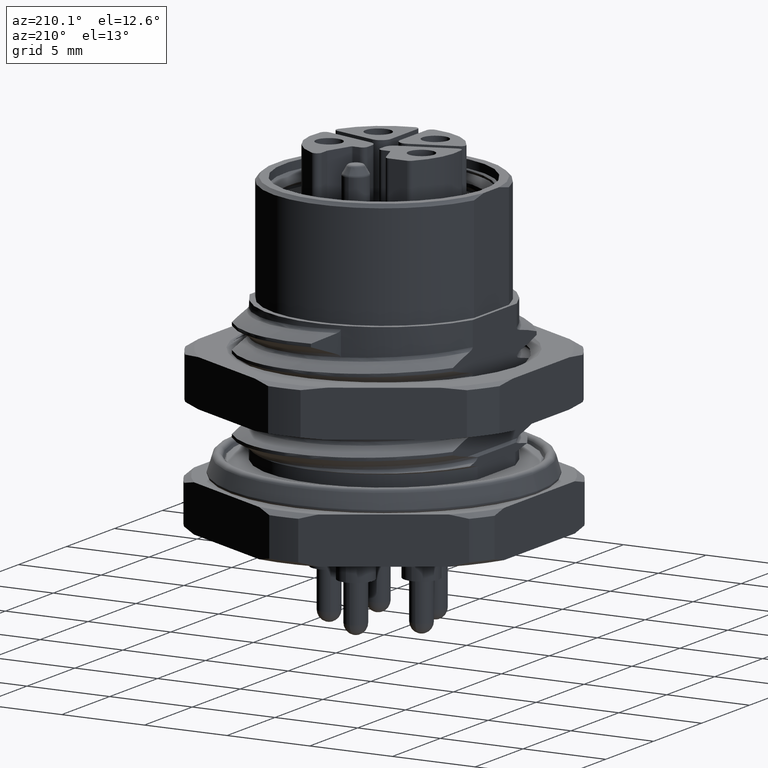
[diagram: clean part render]
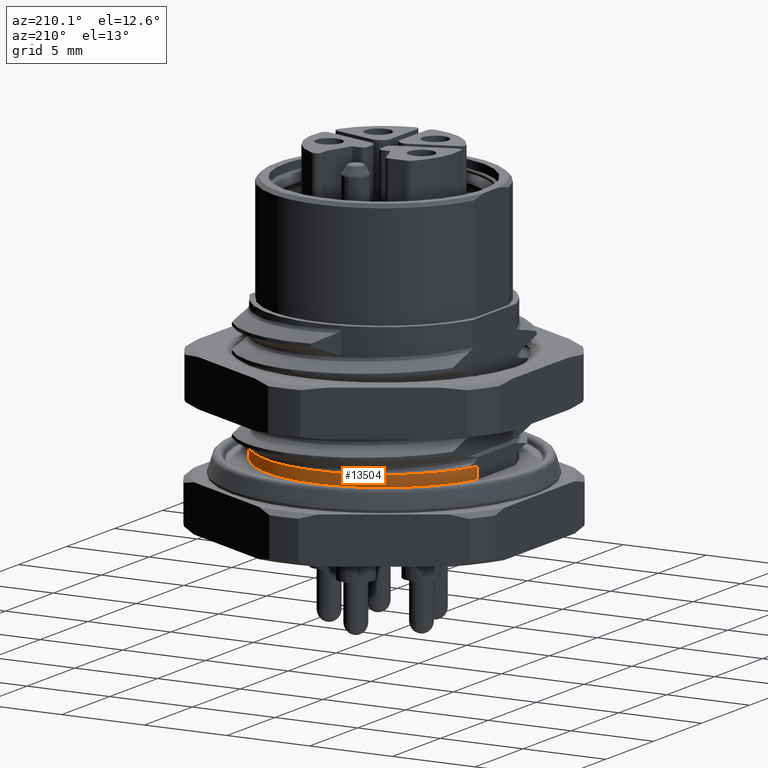
[diagram: same view with one face highlighted and labeled with its STEP entity id]
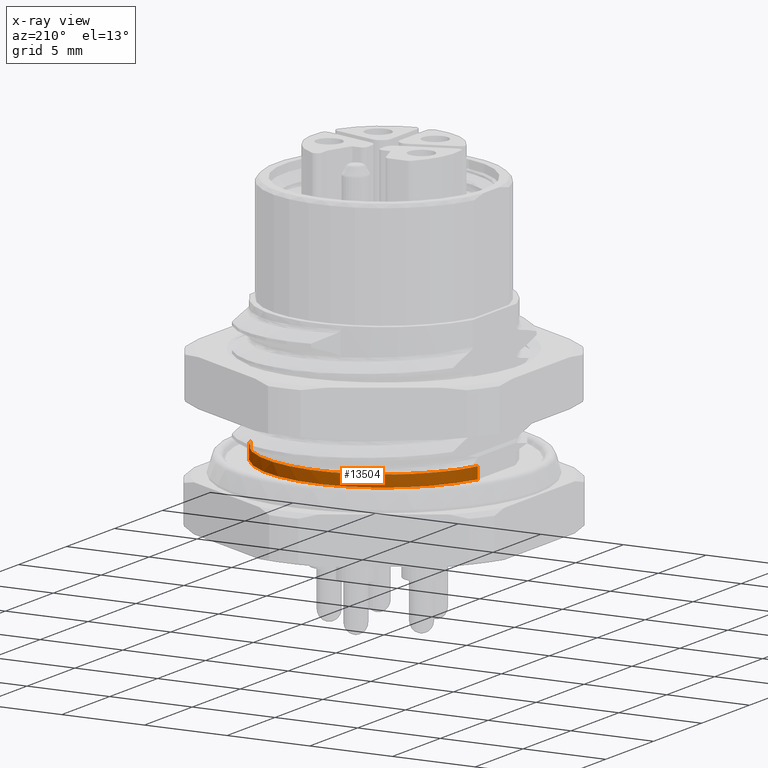
[diagram: x-ray of the same camera — body ghosted, the highlighted face saturated]
A machine part, auxiliary view. The second image highlights one B-rep face of the part: STEP entity #13504.
The next image is the same camera in x-ray: the body ghosted, the highlighted face saturated — about 0% of this face is hidden behind the body in this view.
In plain terms, the highlighted cylindrical surface (partial cylindrical patch) has radius 7.08 mm, axis along (0, 0, -1).
Its self-contained STEP definition (entity closure, byte-faithful):
#5086=DIRECTION('',(0.E0,0.E0,1.E0));
#5087=VECTOR('',#5086,7.E-1);
#5088=CARTESIAN_POINT('',(-6.8E0,1.971395444856E0,9.E-1));
#5089=LINE('',#5088,#5087);
#5253=CARTESIAN_POINT('',(0.E0,0.E0,1.6E0));
#5254=DIRECTION('',(0.E0,0.E0,-1.E0));
#5255=DIRECTION('',(-9.604519774011E-1,2.784456843017E-1,0.E0));
#5256=AXIS2_PLACEMENT_3D('',#5253,#5254,#5255);
#5270=CARTESIAN_POINT('',(0.E0,0.E0,9.E-1));
#5271=DIRECTION('',(0.E0,0.E0,-1.E0));
#5272=DIRECTION('',(-9.604519774011E-1,2.784456843017E-1,0.E0));
#5273=AXIS2_PLACEMENT_3D('',#5270,#5271,#5272);
#5286=DIRECTION('',(0.E0,1.459150260936E-14,-1.E0));
#5287=VECTOR('',#5286,7.E-1);
#5288=CARTESIAN_POINT('',(6.6E0,2.562498780488E0,1.6E0));
#5289=LINE('',#5288,#5287);
#5294=CARTESIAN_POINT('',(0.E0,0.E0,1.6E0));
#5295=DIRECTION('',(0.E0,0.E0,1.E0));
#5296=DIRECTION('',(9.322033898305E-1,3.619348560011E-1,0.E0));
#5297=AXIS2_PLACEMENT_3D('',#5294,#5295,#5296);
#6787=CARTESIAN_POINT('',(-6.8E0,1.971395444856E0,9.E-1));
#6788=CARTESIAN_POINT('',(-6.8E0,1.971395444856E0,1.6E0));
#6789=VERTEX_POINT('',#6787);
#6790=VERTEX_POINT('',#6788);
#6793=CARTESIAN_POINT('',(6.6E0,2.562498780488E0,1.6E0));
#6794=CARTESIAN_POINT('',(6.6E0,2.562498780488E0,9.E-1));
#6795=VERTEX_POINT('',#6793);
#6796=VERTEX_POINT('',#6794);
#6802=CARTESIAN_POINT('',(4.211345330199E0,5.691306573170E0,1.6E0));
#6803=VERTEX_POINT('',#6802);
#13490=CARTESIAN_POINT('',(0.E0,0.E0,2.192720360037E0));
#13491=DIRECTION('',(0.E0,0.E0,-1.E0));
#13492=DIRECTION('',(8.660254037844E-1,-5.E-1,0.E0));
#13493=AXIS2_PLACEMENT_3D('',#13490,#13491,#13492);
#13494=CYLINDRICAL_SURFACE('',#13493,7.08E0);
#13495=ORIENTED_EDGE('',*,*,#8081,.T.);
#13497=ORIENTED_EDGE('',*,*,#13496,.F.);
#13499=ORIENTED_EDGE('',*,*,#13498,.T.);
#13500=ORIENTED_EDGE('',*,*,#13482,.F.);
#13501=ORIENTED_EDGE('',*,*,#13308,.F.);
#13502=EDGE_LOOP('',(#13495,#13497,#13499,#13500,#13501));
#13503=FACE_OUTER_BOUND('',#13502,.F.);
#5257=CIRCLE('',#5256,7.08E0);
#5274=CIRCLE('',#5273,7.08E0);
#5298=CIRCLE('',#5297,7.08E0);
#8081=EDGE_CURVE('',#6789,#6796,#5274,.T.);
#13308=EDGE_CURVE('',#6789,#6790,#5089,.T.);
#13482=EDGE_CURVE('',#6790,#6803,#5257,.T.);
#13496=EDGE_CURVE('',#6795,#6796,#5289,.T.);
#13498=EDGE_CURVE('',#6795,#6803,#5298,.T.);
#13504=ADVANCED_FACE('',(#13503),#13494,.T.);